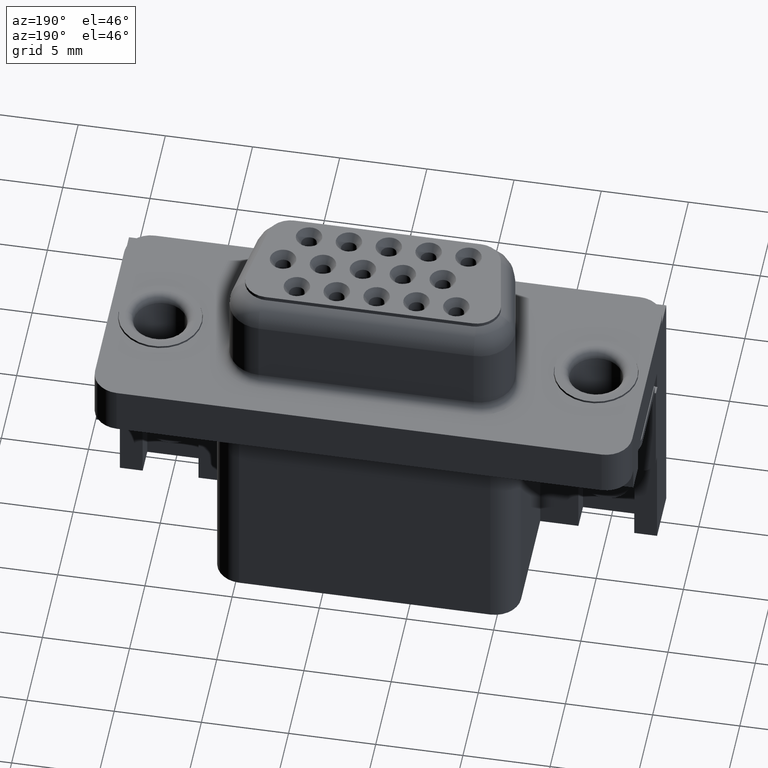
[diagram: clean part render]
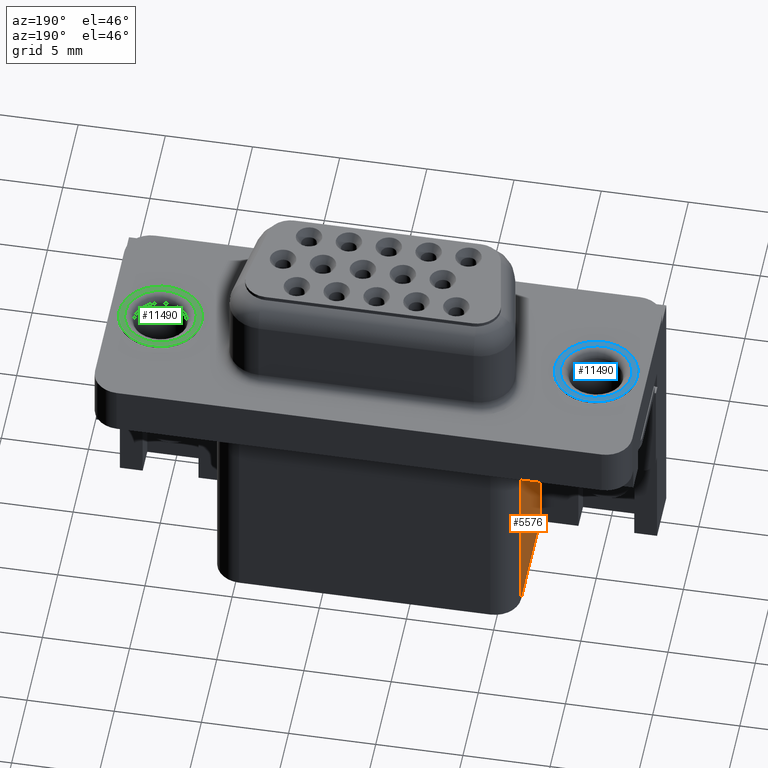
[diagram: same view with three faces highlighted in distinct colors, each labeled with its STEP entity id]
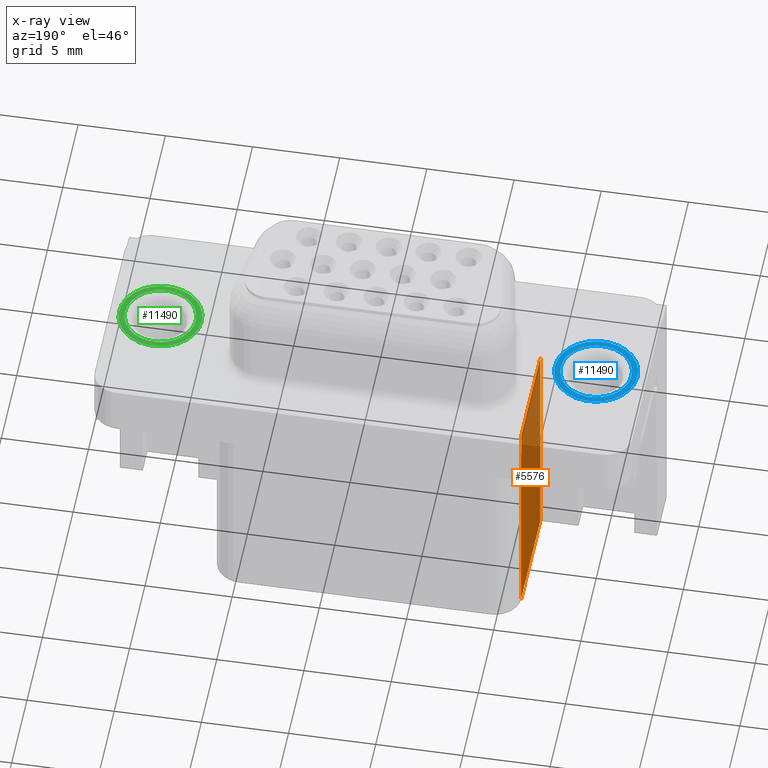
[diagram: x-ray of the same camera — body ghosted, the three highlighted faces saturated]
A machine part, auxiliary view with three faces highlighted in distinct colors.
The next image is the same camera in x-ray (body ghosted, the three faces saturated) — at least one of them is partly hidden behind the body in this view.
Their STEP definitions:

[orange] entity #5576 — the highlighted planar face has unit normal (1, -0, 0).
#424 = VECTOR ( 'NONE', #26132, 1000.000000000000000 ) ;
#885 = VERTEX_POINT ( 'NONE', #11271 ) ;
#2516 = LINE ( 'NONE', #23020, #26987 ) ;
#3887 = EDGE_CURVE ( 'NONE', #19877, #13185, #28002, .T. ) ;
#5576 = ADVANCED_FACE ( 'NONE', ( #8387 ), #26351, .F. ) ;
#5924 = CARTESIAN_POINT ( 'NONE',  ( 3.790000000000013400, -3.295000000000000400, -15.69999999999999900 ) ) ;
#6084 = LINE ( 'NONE', #17497, #31296 ) ;
#6783 = ORIENTED_EDGE ( 'NONE', *, *, #8221, .T. ) ;
#7665 = ORIENTED_EDGE ( 'NONE', *, *, #3887, .F. ) ;
#7723 = LINE ( 'NONE', #21236, #424 ) ;
#7880 = CARTESIAN_POINT ( 'NONE',  ( 3.790000000000014200, 2.894999999999989800, -2.500000000000000000 ) ) ;
#8221 = EDGE_CURVE ( 'NONE', #885, #11945, #12862, .T. ) ;
#8387 = FACE_OUTER_BOUND ( 'NONE', #10562, .T. ) ;
#8526 = DIRECTION ( 'NONE',  ( 6.972361237848913400E-017, 1.000000000000000000, 0.0000000000000000000 ) ) ;
#8853 = CARTESIAN_POINT ( 'NONE',  ( 3.790000000000013400, -3.295000000000000400, -2.500000000000000000 ) ) ;
#9230 = EDGE_CURVE ( 'NONE', #13185, #11945, #2516, .T. ) ;
#9461 = AXIS2_PLACEMENT_3D ( 'NONE', #11633, #14213, #31255 ) ;
#10562 = EDGE_LOOP ( 'NONE', ( #12052, #10904, #6783, #18195, #7665, #24718 ) ) ;
#10653 = EDGE_CURVE ( 'NONE', #19877, #16923, #7723, .T. ) ;
#10904 = ORIENTED_EDGE ( 'NONE', *, *, #22752, .T. ) ;
#11271 = CARTESIAN_POINT ( 'NONE',  ( 3.790000000000014200, 2.894999999999989800, -3.899999999999999900 ) ) ;
#11467 = DIRECTION ( 'NONE',  ( 6.972361237848914600E-017, 1.000000000000000000, -0.0000000000000000000 ) ) ;
#11633 = CARTESIAN_POINT ( 'NONE',  ( 3.790000000000013400, -3.295000000000000400, -15.69999999999999900 ) ) ;
#11945 = VERTEX_POINT ( 'NONE', #27051 ) ;
#12052 = ORIENTED_EDGE ( 'NONE', *, *, #16509, .T. ) ;
#12842 = CARTESIAN_POINT ( 'NONE',  ( 3.790000000000013800, -3.295000000000000400, -2.500000000000000000 ) ) ;
#12862 = LINE ( 'NONE', #26091, #19396 ) ;
#13185 = VERTEX_POINT ( 'NONE', #22701 ) ;
#14078 = CARTESIAN_POINT ( 'NONE',  ( 3.790000000000013400, -3.295000000000000400, -15.69999999999999900 ) ) ;
#14213 = DIRECTION ( 'NONE',  ( 1.000000000000000000, -6.972361237848914600E-017, 0.0000000000000000000 ) ) ;
#14294 = DIRECTION ( 'NONE',  ( 6.972361237848913400E-017, 1.000000000000000000, 0.0000000000000000000 ) ) ;
#15013 = VECTOR ( 'NONE', #14294, 1000.000000000000000 ) ;
#16509 = EDGE_CURVE ( 'NONE', #16923, #17463, #21987, .T. ) ;
#16923 = VERTEX_POINT ( 'NONE', #12842 ) ;
#17463 = VERTEX_POINT ( 'NONE', #7880 ) ;
#17497 = CARTESIAN_POINT ( 'NONE',  ( 3.790000000000013400, 2.894999999999989800, -3.899999999999999900 ) ) ;
#18195 = ORIENTED_EDGE ( 'NONE', *, *, #9230, .F. ) ;
#19396 = VECTOR ( 'NONE', #11467, 1000.000000000000000 ) ;
#19877 = VERTEX_POINT ( 'NONE', #5924 ) ;
#19958 = DIRECTION ( 'NONE',  ( 0.0000000000000000000, 0.0000000000000000000, -1.000000000000000000 ) ) ;
#21236 = CARTESIAN_POINT ( 'NONE',  ( 3.790000000000013400, -3.295000000000000400, -15.69999999999999900 ) ) ;
#21987 = LINE ( 'NONE', #8853, #27719 ) ;
#22701 = CARTESIAN_POINT ( 'NONE',  ( 3.790000000000013800, 2.924999999999990900, -15.69999999999999900 ) ) ;
#22752 = EDGE_CURVE ( 'NONE', #17463, #885, #6084, .T. ) ;
#23020 = CARTESIAN_POINT ( 'NONE',  ( 3.790000000000013800, 2.924999999999990900, -15.69999999999999900 ) ) ;
#24718 = ORIENTED_EDGE ( 'NONE', *, *, #10653, .T. ) ;
#26091 = CARTESIAN_POINT ( 'NONE',  ( 3.790000000000013800, -2.642524909144748300E-016, -3.899999999999999900 ) ) ;
#26132 = DIRECTION ( 'NONE',  ( -0.0000000000000000000, -0.0000000000000000000, 1.000000000000000000 ) ) ;
#26351 = PLANE ( 'NONE',  #9461 ) ;
#26987 = VECTOR ( 'NONE', #30389, 1000.000000000000000 ) ;
#27051 = CARTESIAN_POINT ( 'NONE',  ( 3.790000000000013800, 2.924999999999990900, -3.900000000000000800 ) ) ;
#27719 = VECTOR ( 'NONE', #8526, 1000.000000000000000 ) ;
#28002 = LINE ( 'NONE', #14078, #15013 ) ;
#30389 = DIRECTION ( 'NONE',  ( -0.0000000000000000000, -0.0000000000000000000, 1.000000000000000000 ) ) ;
#31255 = DIRECTION ( 'NONE',  ( 6.972361237848914600E-017, 1.000000000000000000, 0.0000000000000000000 ) ) ;
#31296 = VECTOR ( 'NONE', #19958, 1000.000000000000000 ) ;

[blue] entity #11490 — the highlighted planar face has unit normal (0, 0, 1).
#308 = AXIS2_PLACEMENT_3D ( 'NONE', #6112, #22991, #11014 ) ;
#1191 = FACE_OUTER_BOUND ( 'NONE', #26467, .T. ) ;
#1645 = DIRECTION ( 'NONE',  ( 1.000000000000000000, 0.0000000000000000000, 0.0000000000000000000 ) ) ;
#4373 = EDGE_CURVE ( 'NONE', #10647, #25728, #23754, .T. ) ;
#6112 = CARTESIAN_POINT ( 'NONE',  ( 0.0000000000000000000, 0.0000000000000000000, 0.5000000000000000000 ) ) ;
#6606 = CARTESIAN_POINT ( 'NONE',  ( -2.375000000000000000, 0.0000000000000000000, 0.5000000000000000000 ) ) ;
#7132 = EDGE_CURVE ( 'NONE', #22438, #10195, #23607, .T. ) ;
#7171 = CARTESIAN_POINT ( 'NONE',  ( 2.024999999999999900, 0.0000000000000000000, 0.5000000000000000000 ) ) ;
#8414 = DIRECTION ( 'NONE',  ( -0.0000000000000000000, -0.0000000000000000000, -1.000000000000000000 ) ) ;
#8559 = PLANE ( 'NONE',  #308 ) ;
#8614 = DIRECTION ( 'NONE',  ( 0.0000000000000000000, 0.0000000000000000000, 1.000000000000000000 ) ) ;
#10195 = VERTEX_POINT ( 'NONE', #7171 ) ;
#10647 = VERTEX_POINT ( 'NONE', #6606 ) ;
#10888 = CARTESIAN_POINT ( 'NONE',  ( 0.0000000000000000000, 0.0000000000000000000, 0.5000000000000000000 ) ) ;
#11014 = DIRECTION ( 'NONE',  ( 1.000000000000000000, 0.0000000000000000000, -0.0000000000000000000 ) ) ;
#11245 = AXIS2_PLACEMENT_3D ( 'NONE', #23058, #8414, #25485 ) ;
#11490 = ADVANCED_FACE ( 'NONE', ( #19992, #1191 ), #8559, .T. ) ;
#12681 = CIRCLE ( 'NONE', #30794, 2.375000000000000000 ) ;
#13361 = DIRECTION ( 'NONE',  ( 1.000000000000000000, 0.0000000000000000000, 0.0000000000000000000 ) ) ;
#14813 = EDGE_CURVE ( 'NONE', #10195, #22438, #27817, .T. ) ;
#15186 = AXIS2_PLACEMENT_3D ( 'NONE', #30919, #16335, #1645 ) ;
#16335 = DIRECTION ( 'NONE',  ( 0.0000000000000000000, 0.0000000000000000000, 1.000000000000000000 ) ) ;
#19992 = FACE_BOUND ( 'NONE', #20255, .T. ) ;
#20255 = EDGE_LOOP ( 'NONE', ( #30745, #20454 ) ) ;
#20454 = ORIENTED_EDGE ( 'NONE', *, *, #7132, .T. ) ;
#20938 = EDGE_CURVE ( 'NONE', #25728, #10647, #12681, .T. ) ;
#21180 = CARTESIAN_POINT ( 'NONE',  ( 2.375000000000000000, 2.908536147974963700E-016, 0.5000000000000000000 ) ) ;
#22438 = VERTEX_POINT ( 'NONE', #29900 ) ;
#22991 = DIRECTION ( 'NONE',  ( 0.0000000000000000000, 0.0000000000000000000, 1.000000000000000000 ) ) ;
#23010 = ORIENTED_EDGE ( 'NONE', *, *, #4373, .T. ) ;
#23058 = CARTESIAN_POINT ( 'NONE',  ( 0.0000000000000000000, 0.0000000000000000000, 0.5000000000000000000 ) ) ;
#23243 = CARTESIAN_POINT ( 'NONE',  ( 0.0000000000000000000, 0.0000000000000000000, 0.5000000000000000000 ) ) ;
#23607 = CIRCLE ( 'NONE', #29972, 2.024999999999999900 ) ;
#23754 = CIRCLE ( 'NONE', #15186, 2.375000000000000000 ) ;
#25485 = DIRECTION ( 'NONE',  ( 1.000000000000000000, 0.0000000000000000000, 0.0000000000000000000 ) ) ;
#25687 = DIRECTION ( 'NONE',  ( 1.000000000000000000, 0.0000000000000000000, 0.0000000000000000000 ) ) ;
#25728 = VERTEX_POINT ( 'NONE', #21180 ) ;
#26467 = EDGE_LOOP ( 'NONE', ( #23010, #27843 ) ) ;
#27817 = CIRCLE ( 'NONE', #11245, 2.024999999999999900 ) ;
#27843 = ORIENTED_EDGE ( 'NONE', *, *, #20938, .T. ) ;
#28000 = DIRECTION ( 'NONE',  ( -0.0000000000000000000, -0.0000000000000000000, -1.000000000000000000 ) ) ;
#29900 = CARTESIAN_POINT ( 'NONE',  ( -2.024999999999999900, 2.479909768273389800E-016, 0.5000000000000000000 ) ) ;
#29972 = AXIS2_PLACEMENT_3D ( 'NONE', #10888, #28000, #13361 ) ;
#30745 = ORIENTED_EDGE ( 'NONE', *, *, #14813, .T. ) ;
#30794 = AXIS2_PLACEMENT_3D ( 'NONE', #23243, #8614, #25687 ) ;
#30919 = CARTESIAN_POINT ( 'NONE',  ( 0.0000000000000000000, 0.0000000000000000000, 0.5000000000000000000 ) ) ;

[green] entity #11490 — the highlighted planar face has unit normal (0, 0, 1).
#308 = AXIS2_PLACEMENT_3D ( 'NONE', #6112, #22991, #11014 ) ;
#1191 = FACE_OUTER_BOUND ( 'NONE', #26467, .T. ) ;
#1645 = DIRECTION ( 'NONE',  ( 1.000000000000000000, 0.0000000000000000000, 0.0000000000000000000 ) ) ;
#4373 = EDGE_CURVE ( 'NONE', #10647, #25728, #23754, .T. ) ;
#6112 = CARTESIAN_POINT ( 'NONE',  ( 0.0000000000000000000, 0.0000000000000000000, 0.5000000000000000000 ) ) ;
#6606 = CARTESIAN_POINT ( 'NONE',  ( -2.375000000000000000, 0.0000000000000000000, 0.5000000000000000000 ) ) ;
#7132 = EDGE_CURVE ( 'NONE', #22438, #10195, #23607, .T. ) ;
#7171 = CARTESIAN_POINT ( 'NONE',  ( 2.024999999999999900, 0.0000000000000000000, 0.5000000000000000000 ) ) ;
#8414 = DIRECTION ( 'NONE',  ( -0.0000000000000000000, -0.0000000000000000000, -1.000000000000000000 ) ) ;
#8559 = PLANE ( 'NONE',  #308 ) ;
#8614 = DIRECTION ( 'NONE',  ( 0.0000000000000000000, 0.0000000000000000000, 1.000000000000000000 ) ) ;
#10195 = VERTEX_POINT ( 'NONE', #7171 ) ;
#10647 = VERTEX_POINT ( 'NONE', #6606 ) ;
#10888 = CARTESIAN_POINT ( 'NONE',  ( 0.0000000000000000000, 0.0000000000000000000, 0.5000000000000000000 ) ) ;
#11014 = DIRECTION ( 'NONE',  ( 1.000000000000000000, 0.0000000000000000000, -0.0000000000000000000 ) ) ;
#11245 = AXIS2_PLACEMENT_3D ( 'NONE', #23058, #8414, #25485 ) ;
#11490 = ADVANCED_FACE ( 'NONE', ( #19992, #1191 ), #8559, .T. ) ;
#12681 = CIRCLE ( 'NONE', #30794, 2.375000000000000000 ) ;
#13361 = DIRECTION ( 'NONE',  ( 1.000000000000000000, 0.0000000000000000000, 0.0000000000000000000 ) ) ;
#14813 = EDGE_CURVE ( 'NONE', #10195, #22438, #27817, .T. ) ;
#15186 = AXIS2_PLACEMENT_3D ( 'NONE', #30919, #16335, #1645 ) ;
#16335 = DIRECTION ( 'NONE',  ( 0.0000000000000000000, 0.0000000000000000000, 1.000000000000000000 ) ) ;
#19992 = FACE_BOUND ( 'NONE', #20255, .T. ) ;
#20255 = EDGE_LOOP ( 'NONE', ( #30745, #20454 ) ) ;
#20454 = ORIENTED_EDGE ( 'NONE', *, *, #7132, .T. ) ;
#20938 = EDGE_CURVE ( 'NONE', #25728, #10647, #12681, .T. ) ;
#21180 = CARTESIAN_POINT ( 'NONE',  ( 2.375000000000000000, 2.908536147974963700E-016, 0.5000000000000000000 ) ) ;
#22438 = VERTEX_POINT ( 'NONE', #29900 ) ;
#22991 = DIRECTION ( 'NONE',  ( 0.0000000000000000000, 0.0000000000000000000, 1.000000000000000000 ) ) ;
#23010 = ORIENTED_EDGE ( 'NONE', *, *, #4373, .T. ) ;
#23058 = CARTESIAN_POINT ( 'NONE',  ( 0.0000000000000000000, 0.0000000000000000000, 0.5000000000000000000 ) ) ;
#23243 = CARTESIAN_POINT ( 'NONE',  ( 0.0000000000000000000, 0.0000000000000000000, 0.5000000000000000000 ) ) ;
#23607 = CIRCLE ( 'NONE', #29972, 2.024999999999999900 ) ;
#23754 = CIRCLE ( 'NONE', #15186, 2.375000000000000000 ) ;
#25485 = DIRECTION ( 'NONE',  ( 1.000000000000000000, 0.0000000000000000000, 0.0000000000000000000 ) ) ;
#25687 = DIRECTION ( 'NONE',  ( 1.000000000000000000, 0.0000000000000000000, 0.0000000000000000000 ) ) ;
#25728 = VERTEX_POINT ( 'NONE', #21180 ) ;
#26467 = EDGE_LOOP ( 'NONE', ( #23010, #27843 ) ) ;
#27817 = CIRCLE ( 'NONE', #11245, 2.024999999999999900 ) ;
#27843 = ORIENTED_EDGE ( 'NONE', *, *, #20938, .T. ) ;
#28000 = DIRECTION ( 'NONE',  ( -0.0000000000000000000, -0.0000000000000000000, -1.000000000000000000 ) ) ;
#29900 = CARTESIAN_POINT ( 'NONE',  ( -2.024999999999999900, 2.479909768273389800E-016, 0.5000000000000000000 ) ) ;
#29972 = AXIS2_PLACEMENT_3D ( 'NONE', #10888, #28000, #13361 ) ;
#30745 = ORIENTED_EDGE ( 'NONE', *, *, #14813, .T. ) ;
#30794 = AXIS2_PLACEMENT_3D ( 'NONE', #23243, #8614, #25687 ) ;
#30919 = CARTESIAN_POINT ( 'NONE',  ( 0.0000000000000000000, 0.0000000000000000000, 0.5000000000000000000 ) ) ;